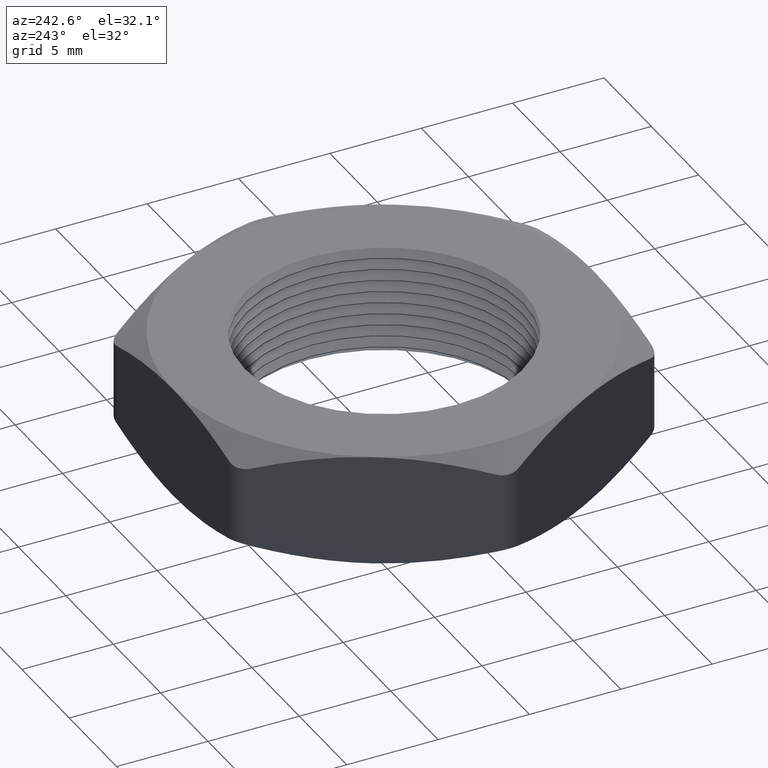
[diagram: clean part render]
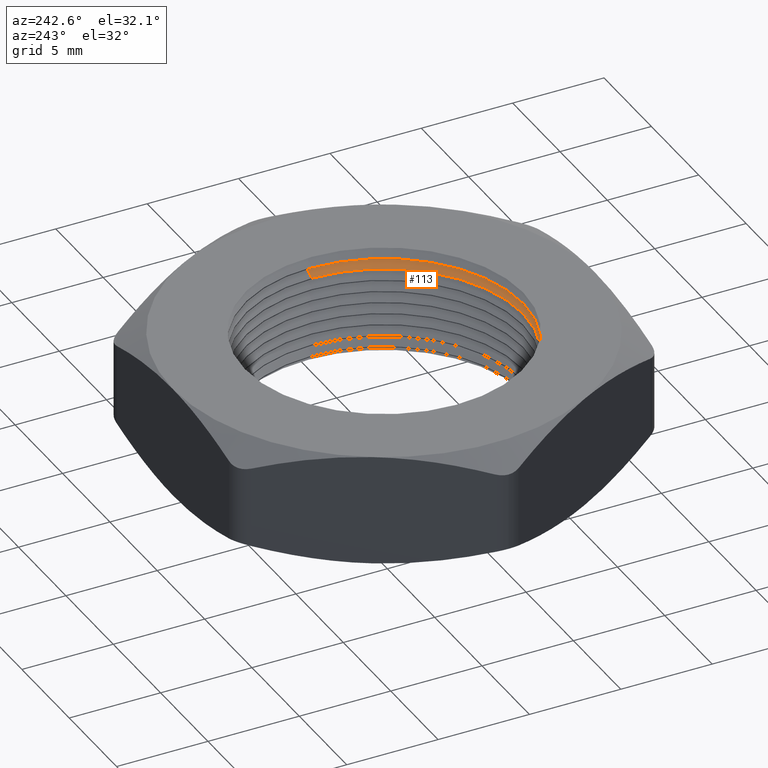
[diagram: same view with one face highlighted and labeled with its STEP entity id]
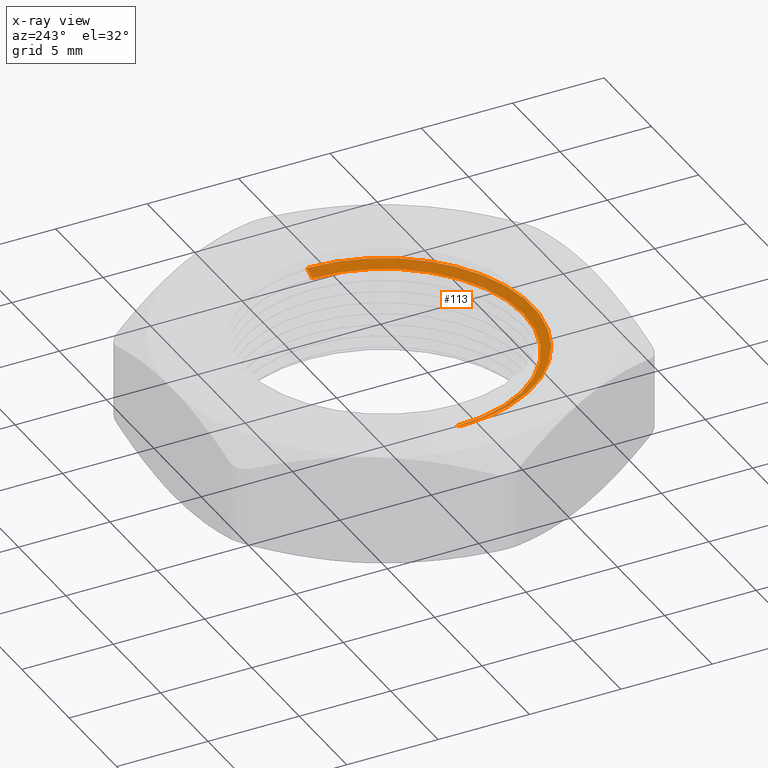
[diagram: x-ray of the same camera — body ghosted, the highlighted face saturated]
A machine part, auxiliary view. The second image highlights one B-rep face of the part: STEP entity #113.
The next image is the same camera in x-ray: the body ghosted, the highlighted face saturated — about 0% of this face is hidden behind the body in this view.
In plain terms, the highlighted conical surface has half-angle 60 deg.
Its self-contained STEP definition (entity closure, byte-faithful):
#46 = ORIENTED_EDGE ( 'NONE', *, *, #70, .T. ) ;
#54 = EDGE_LOOP ( 'NONE', ( #110, #117, #46, #72 ) ) ;
#70 = EDGE_CURVE ( 'NONE', #119, #71, #1036, .T. ) ;
#71 = VERTEX_POINT ( 'NONE', #1007 ) ;
#72 = ORIENTED_EDGE ( 'NONE', *, *, #73, .F. ) ;
#73 = EDGE_CURVE ( 'NONE', #112, #71, #1031, .T. ) ;
#110 = ORIENTED_EDGE ( 'NONE', *, *, #111, .F. ) ;
#111 = EDGE_CURVE ( 'NONE', #114, #112, #1161, .T. ) ;
#112 = VERTEX_POINT ( 'NONE', #1156 ) ;
#113 = ADVANCED_FACE ( 'NONE', ( #1155 ), #1153, .F. ) ;
#114 = VERTEX_POINT ( 'NONE', #1209 ) ;
#117 = ORIENTED_EDGE ( 'NONE', *, *, #118, .T. ) ;
#118 = EDGE_CURVE ( 'NONE', #114, #119, #1204, .T. ) ;
#119 = VERTEX_POINT ( 'NONE', #1200 ) ;
#1007 = CARTESIAN_POINT ( 'NONE',  ( 0.3200000000000000100, 3.918869757271530800E-017, 0.2034529946162077500 ) ) ;
#1030 = CARTESIAN_POINT ( 'NONE',  ( 0.2999999999999999900, 0.0000000000000000000, 0.1919059892324150900 ) ) ;
#1031 = LINE ( 'NONE', #1030, #1122 ) ;
#1032 = CARTESIAN_POINT ( 'NONE',  ( 0.0000000000000000000, 0.0000000000000000000, 0.2034529946162077500 ) ) ;
#1033 = AXIS2_PLACEMENT_3D ( 'NONE', #1032, #1035, #1034 ) ;
#1034 = DIRECTION ( 'NONE',  ( 1.000000000000000000, 0.0000000000000000000, 0.0000000000000000000 ) ) ;
#1035 = DIRECTION ( 'NONE',  ( 0.0000000000000000000, 0.0000000000000000000, 1.000000000000000000 ) ) ;
#1036 = CIRCLE ( 'NONE', #1033, 0.3200000000000000100 ) ;
#1121 = DIRECTION ( 'NONE',  ( 0.8660254037844362700, 0.0000000000000000000, 0.5000000000000041100 ) ) ;
#1122 = VECTOR ( 'NONE', #1121, 39.37007874015748100 ) ;
#1150 = DIRECTION ( 'NONE',  ( 1.000000000000000000, 0.0000000000000000000, 0.0000000000000000000 ) ) ;
#1151 = DIRECTION ( 'NONE',  ( 0.0000000000000000000, 0.0000000000000000000, 1.000000000000000000 ) ) ;
#1152 = AXIS2_PLACEMENT_3D ( 'NONE', #1154, #1151, #1150 ) ;
#1153 = CONICAL_SURFACE ( 'NONE', #1152, 0.2999999999999999900, 1.047197551196593000 ) ;
#1154 = CARTESIAN_POINT ( 'NONE',  ( 0.0000000000000000000, 0.0000000000000000000, 0.1919059892324150900 ) ) ;
#1155 = FACE_OUTER_BOUND ( 'NONE', #54, .T. ) ;
#1156 = CARTESIAN_POINT ( 'NONE',  ( 0.2999999999999999900, 3.673940397442058300E-017, 0.1919059892324150900 ) ) ;
#1157 = DIRECTION ( 'NONE',  ( 1.000000000000000000, 0.0000000000000000000, 0.0000000000000000000 ) ) ;
#1158 = DIRECTION ( 'NONE',  ( 0.0000000000000000000, 0.0000000000000000000, 1.000000000000000000 ) ) ;
#1159 = CARTESIAN_POINT ( 'NONE',  ( 0.0000000000000000000, 0.0000000000000000000, 0.1919059892324150900 ) ) ;
#1160 = AXIS2_PLACEMENT_3D ( 'NONE', #1159, #1158, #1157 ) ;
#1161 = CIRCLE ( 'NONE', #1160, 0.2999999999999999900 ) ;
#1200 = CARTESIAN_POINT ( 'NONE',  ( -0.3200000000000000100, 0.0000000000000000000, 0.2034529946162077500 ) ) ;
#1201 = DIRECTION ( 'NONE',  ( -0.8660254037844362700, 1.060575238724903800E-016, 0.5000000000000041100 ) ) ;
#1202 = VECTOR ( 'NONE', #1201, 39.37007874015748100 ) ;
#1203 = CARTESIAN_POINT ( 'NONE',  ( -0.2999999999999999900, 3.673940397442058900E-017, 0.1919059892324150900 ) ) ;
#1204 = LINE ( 'NONE', #1203, #1202 ) ;
#1209 = CARTESIAN_POINT ( 'NONE',  ( -0.2999999999999999900, 0.0000000000000000000, 0.1919059892324150900 ) ) ;